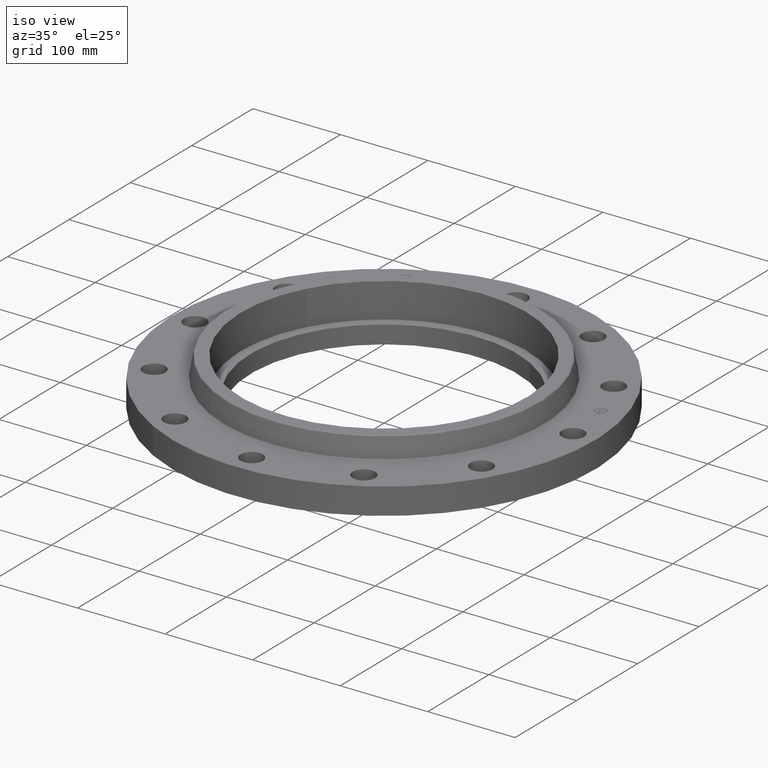
[diagram: clean part render]
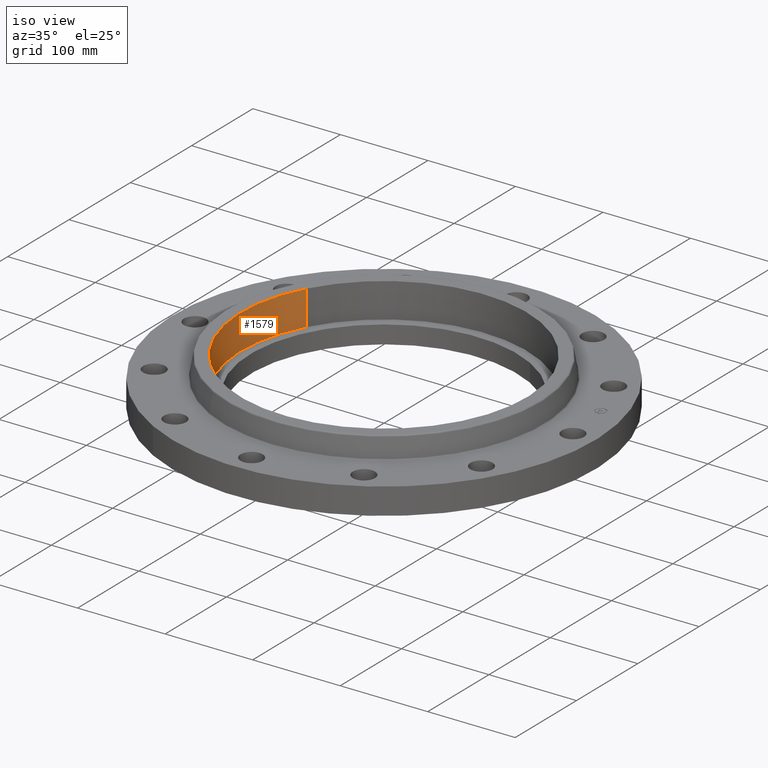
[diagram: same view with one face highlighted and labeled with its STEP entity id]
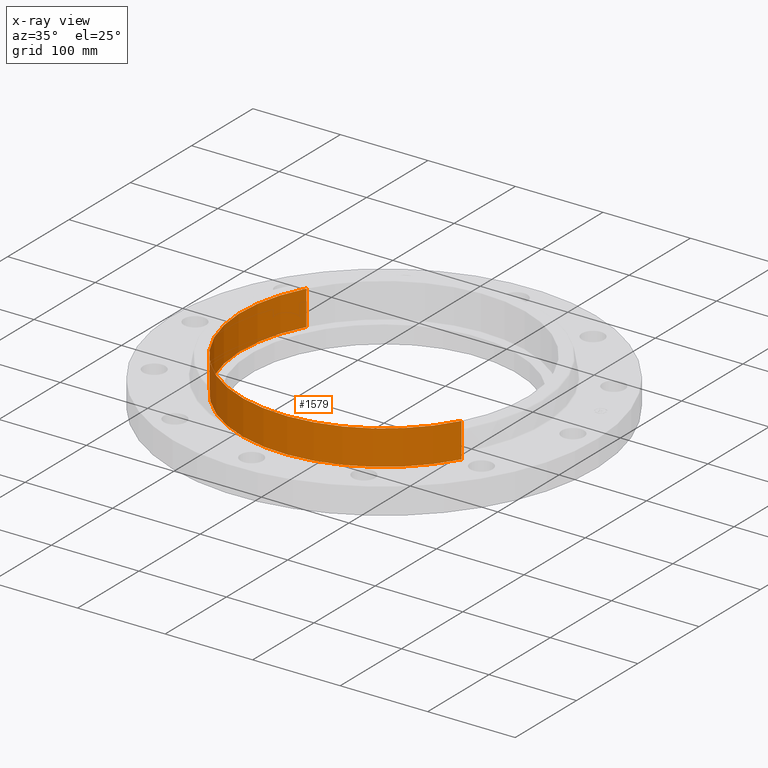
[diagram: x-ray of the same camera — body ghosted, the highlighted face saturated]
A machine part, iso view. The second image highlights one B-rep face of the part: STEP entity #1579.
The next image is the same camera in x-ray: the body ghosted, the highlighted face saturated — about 0% of this face is hidden behind the body in this view.
In plain terms, the highlighted cylindrical surface (partial cylindrical patch) has radius 163.576 mm, axis along (0, 0, -1).
Its self-contained STEP definition (entity closure, byte-faithful):
#51=AXIS2_PLACEMENT_3D('Circle Axis2P3D',#49,#50,$) ;
#1514=AXIS2_PLACEMENT_3D('Circle Axis2P3D',#1512,#1513,$) ;
#1554=AXIS2_PLACEMENT_3D('Cylinder Axis2P3D',#1551,#1552,#1553) ;
#44=CARTESIAN_POINT('Vertex',(-5.6516316986,3.08750046862,0.560000000002)) ;
#46=CARTESIAN_POINT('Vertex',(5.6516316986,-3.08750046862,0.560000000002)) ;
#49=CARTESIAN_POINT('Axis2P3D Location',(1.04902962957E-016,-6.99353086378E-017,0.560000000002)) ;
#1507=CARTESIAN_POINT('Vertex',(-5.6516316986,3.08750046862,2.12000000001)) ;
#1509=CARTESIAN_POINT('Vertex',(5.6516316986,-3.08750046862,2.12000000001)) ;
#1512=CARTESIAN_POINT('Axis2P3D Location',(2.79741234551E-016,0.,2.12000000001)) ;
#1551=CARTESIAN_POINT('Axis2P3D Location',(1.04902962957E-016,-6.99353086378E-017,2.11606299213)) ;
#1556=CARTESIAN_POINT('Line Origine',(-5.6516316986,3.08750046862,1.34000000001)) ;
#1561=CARTESIAN_POINT('Line Origine',(5.6516316986,-3.08750046862,1.34000000001)) ;
#50=DIRECTION('Axis2P3D Direction',(0.,0.,-0.0393700787402)) ;
#1513=DIRECTION('Axis2P3D Direction',(0.,0.,-0.0393700787402)) ;
#1552=DIRECTION('Axis2P3D Direction',(0.,0.,-0.0393700787402)) ;
#1553=DIRECTION('Axis2P3D XDirection',(0.0345504945626,-0.0188750212049,0.)) ;
#1557=DIRECTION('Vector Direction',(0.,0.,-0.0393700787402)) ;
#1562=DIRECTION('Vector Direction',(0.,0.,-0.0393700787402)) ;
#1558=VECTOR('Line Direction',#1557,0.0393700787402) ;
#1563=VECTOR('Line Direction',#1562,0.0393700787402) ;
#1574=ORIENTED_EDGE('',*,*,#1516,.F.) ;
#1575=ORIENTED_EDGE('',*,*,#1565,.F.) ;
#1576=ORIENTED_EDGE('',*,*,#53,.T.) ;
#1577=ORIENTED_EDGE('',*,*,#1560,.T.) ;
#1579=ADVANCED_FACE('PartBody',(#1578),#1555,.F.) ;
#52=CIRCLE('generated circle',#51,6.44000000003) ;
#1515=CIRCLE('generated circle',#1514,6.44000000003) ;
#1555=CYLINDRICAL_SURFACE('generated cylinder',#1554,6.44000000003) ;
#53=EDGE_CURVE('',#47,#45,#52,.T.) ;
#1516=EDGE_CURVE('',#1510,#1508,#1515,.T.) ;
#1560=EDGE_CURVE('',#45,#1508,#1559,.F.) ;
#1565=EDGE_CURVE('',#47,#1510,#1564,.F.) ;
#1573=EDGE_LOOP('',(#1574,#1575,#1576,#1577)) ;
#1578=FACE_OUTER_BOUND('',#1573,.T.) ;
#1559=LINE('Line',#1556,#1558) ;
#1564=LINE('Line',#1561,#1563) ;
#45=VERTEX_POINT('',#44) ;
#47=VERTEX_POINT('',#46) ;
#1508=VERTEX_POINT('',#1507) ;
#1510=VERTEX_POINT('',#1509) ;